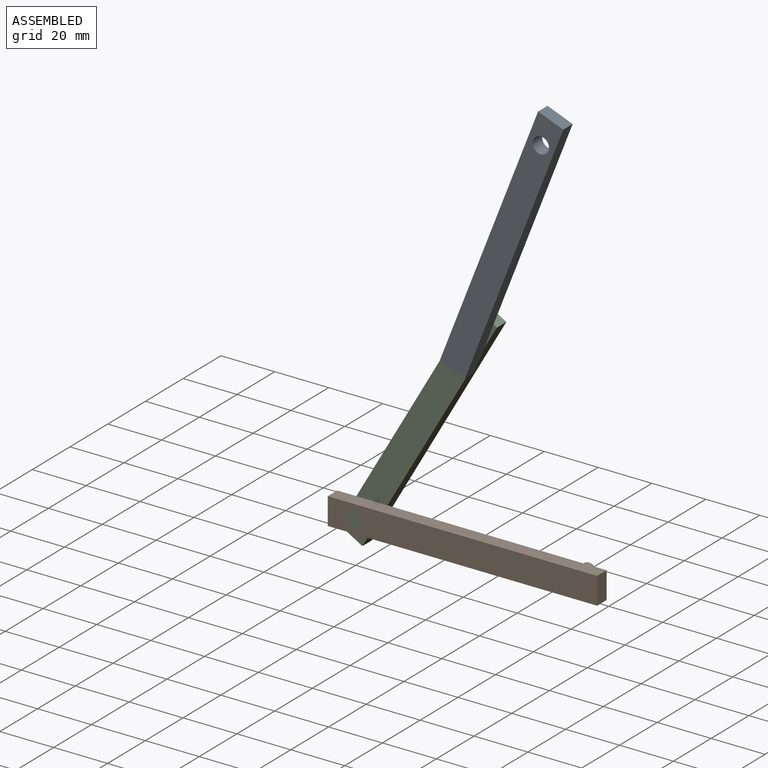
[diagram: assembled view]
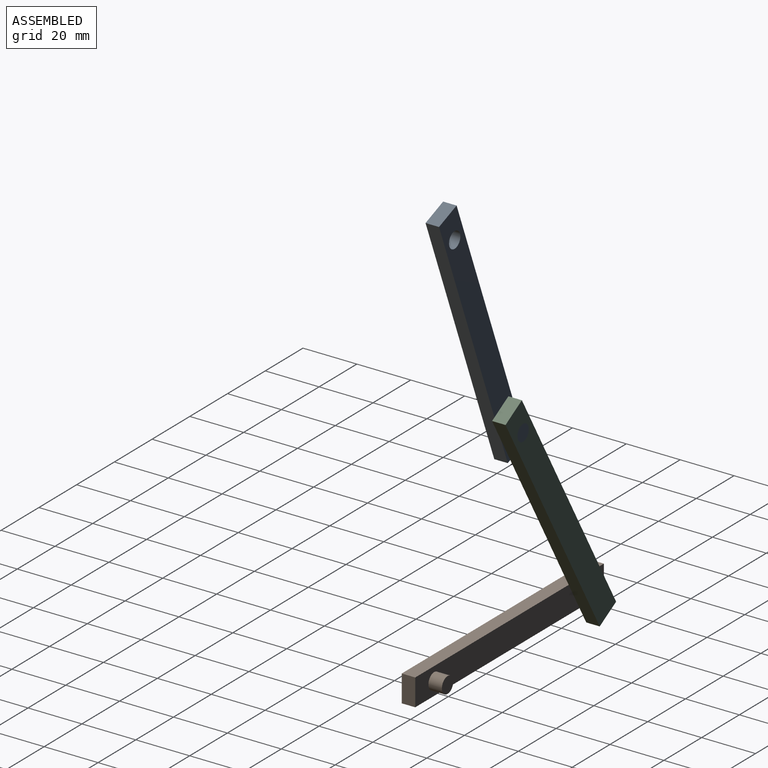
[diagram: assembled view, second angle]
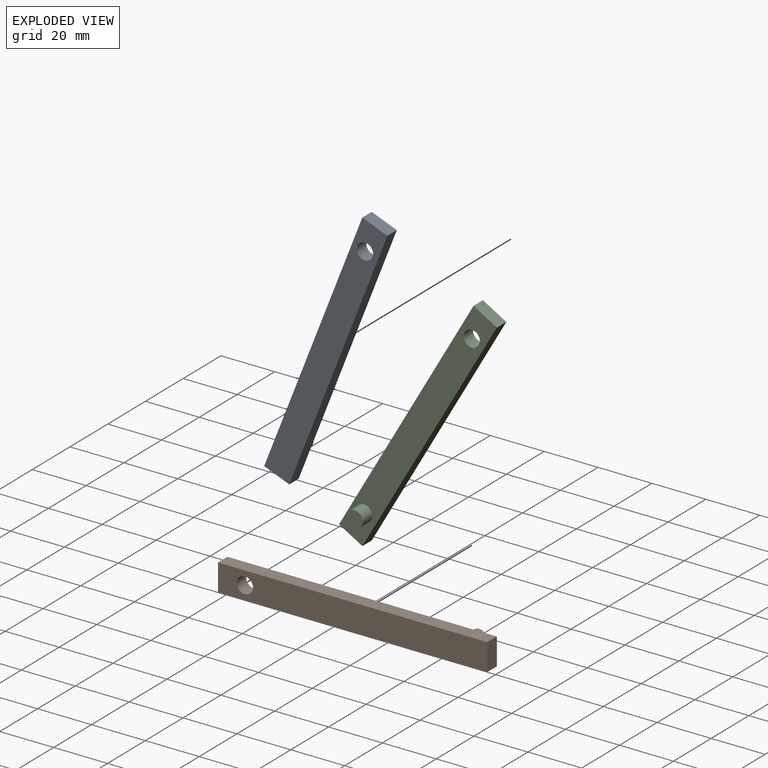
[diagram: exploded view]
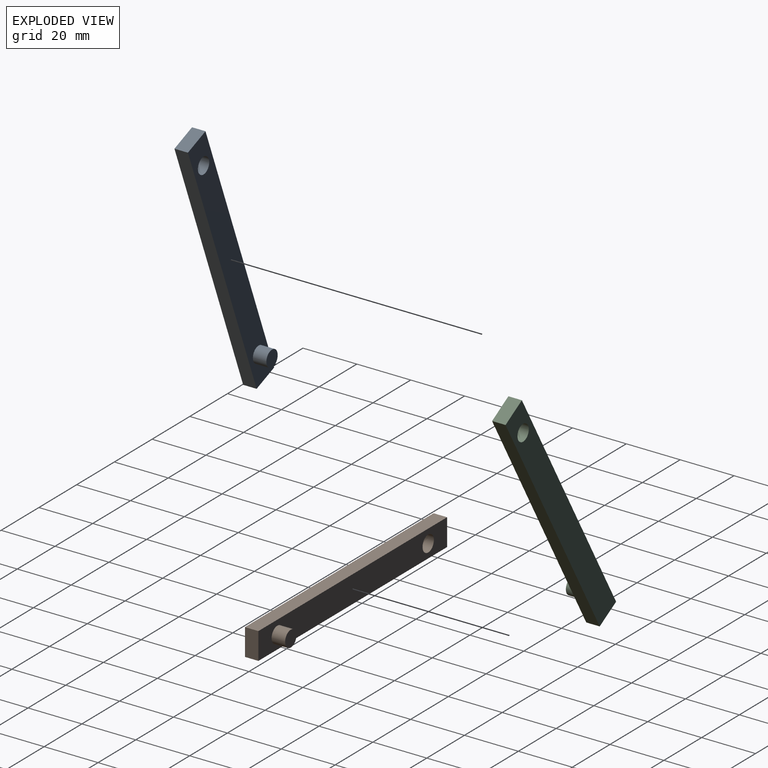
[diagram: exploded view, second angle]
ASSEMBLY  parts=3 mates=2
PART A: 9 faces, bbox 100x10x10 mm
  f0: plane 10x5mm, normal (-1,0,0), area 50mm2, adj f1,f3,f5,f6
  f1: plane 100x5mm, normal (0,0,-1), area 500mm2, adj f0,f2,f5,f6
  f2: plane 10x5mm, normal (1,0,0), area 50mm2, adj f1,f3,f5,f6
  f3: plane 100x5mm, normal (0,0,1), area 500mm2, adj f0,f2,f5,f6
  f4: cylinder r=3mm len=6mm, axis (0,1,0), area 94.2mm2, adj f5,f6
  f5: plane 100x10mm, normal (0,-1,0), area 971.7mm2, adj f0,f1,f2,f3,f4
  f6: plane 100x10mm, normal (0,1,0), area 943.5mm2, adj f0,f1,f2,f3,f4,f7
  f7: cylinder r=3mm len=6mm, axis (0,-1,0), area 94.2mm2, adj f6,f8
  f8: plane 6x6mm, normal (0,1,0), area 28.3mm2, adj f7
PART B: same geometry as A
PART C: same geometry as A
PLACE A rot(axis=(0,1,0),111.4deg) t=(66.12,27.36,163.04)mm
PLACE B t=(-11.95,27.36,3.09)mm fixed
PLACE C rot(axis=(-0.5,0,0.87),180deg) t=(47.32,27.36,83.57)mm
MATE revolute C.f4 <-> A.f7  axis (0,1,0) through (37.99,32.36,77.4)mm
MATE revolute B.f4 <-> C.f7  axis (0,-1,0) through (-1.95,22.36,8.09)mm
